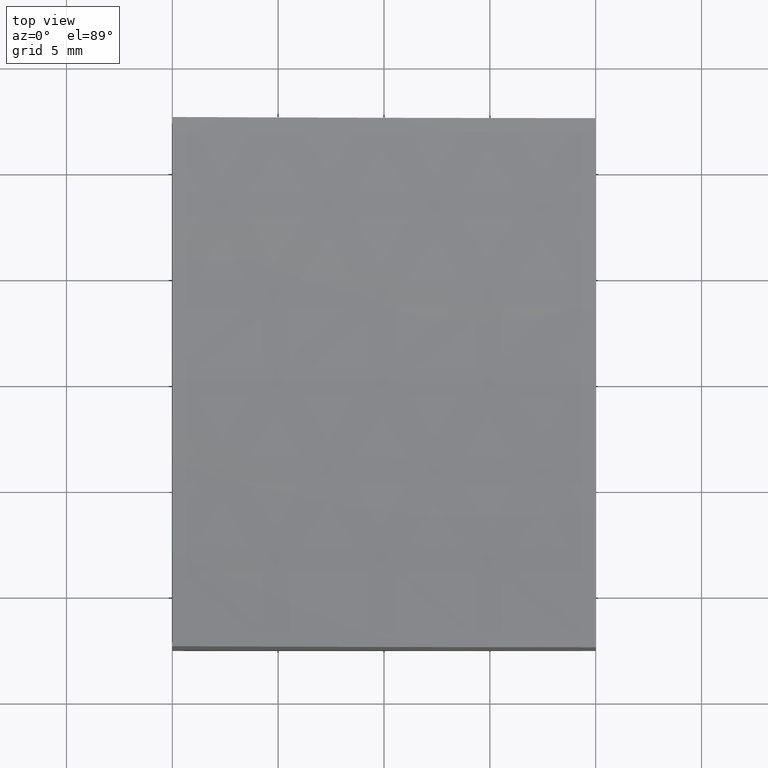
[diagram: clean part render]
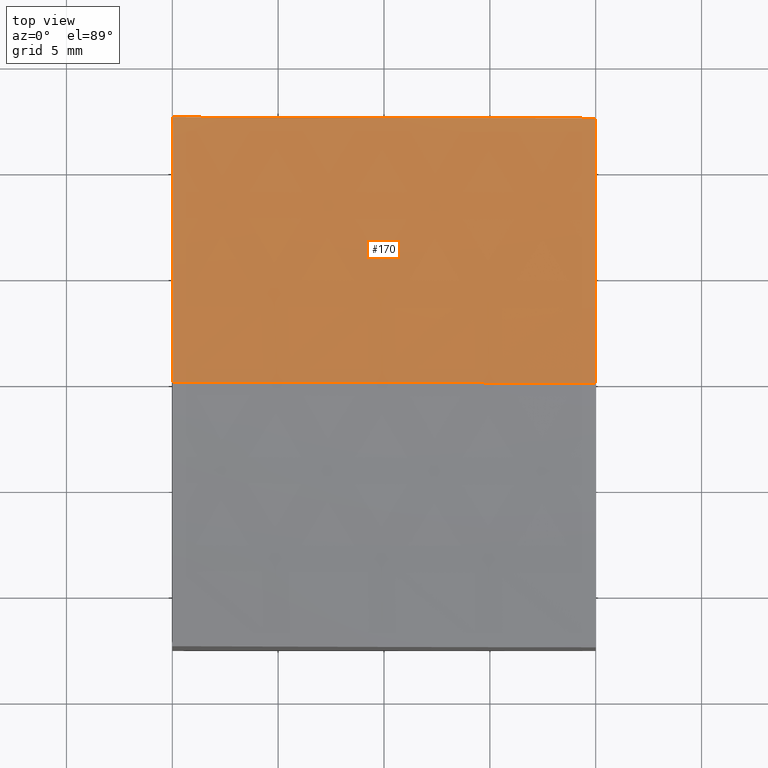
[diagram: same view with one face highlighted and labeled with its STEP entity id]
A machine part, top view. The second image highlights one B-rep face of the part: STEP entity #170.
In plain terms, the highlighted spherical surface has radius 100 mm.
Its self-contained STEP definition (entity closure, byte-faithful):
#2 = EDGE_CURVE ( 'NONE', #212, #157, #226, .T. ) ;
#12 = AXIS2_PLACEMENT_3D ( 'NONE', #122, #200, #274 ) ;
#17 = CARTESIAN_POINT ( 'NONE',  ( 10.00000000000000178, 12.50000000000000000, -0.08960591303207310343 ) ) ;
#31 = ORIENTED_EDGE ( 'NONE', *, *, #216, .T. ) ;
#41 = CARTESIAN_POINT ( 'NONE',  ( 15.00000000000001421, 12.50000000000000178, 99.00000000000000000 ) ) ;
#56 = AXIS2_PLACEMENT_3D ( 'NONE', #101, #184, #273 ) ;
#57 = DIRECTION ( 'NONE',  ( 0.000000000000000000, -1.000000000000000000, -0.000000000000000000 ) ) ;
#77 = DIRECTION ( 'NONE',  ( 1.000000000000000000, 0.000000000000000000, -1.387778780781445676E-16 ) ) ;
#78 = ORIENTED_EDGE ( 'NONE', *, *, #2, .F. ) ;
#81 = DIRECTION ( 'NONE',  ( 0.000000000000000000, 0.000000000000000000, 1.000000000000000000 ) ) ;
#87 = CARTESIAN_POINT ( 'NONE',  ( 10.00000000000000178, -6.123233995736767268E-16, -0.8749217771908888164 ) ) ;
#89 = AXIS2_PLACEMENT_3D ( 'NONE', #137, #249, #81 ) ;
#100 = FACE_OUTER_BOUND ( 'NONE', #192, .T. ) ;
#101 = CARTESIAN_POINT ( 'NONE',  ( 15.00000000000001421, 0.000000000000000000, 99.00000000000000000 ) ) ;
#104 = AXIS2_PLACEMENT_3D ( 'NONE', #41, #182, #196 ) ;
#106 = EDGE_CURVE ( 'NONE', #157, #179, #224, .T. ) ;
#122 = CARTESIAN_POINT ( 'NONE',  ( -10.00000000000000000, 0.000000000000000000, 99.00000000000000000 ) ) ;
#125 = SPHERICAL_SURFACE ( 'NONE', #213, 100.0000000000000000 ) ;
#137 = CARTESIAN_POINT ( 'NONE',  ( 10.00000000000000178, 0.000000000000000000, 99.00000000000000000 ) ) ;
#142 = CARTESIAN_POINT ( 'NONE',  ( -9.999999999999998224, 12.49999999999999645, 2.985678151642384925 ) ) ;
#150 = CIRCLE ( 'NONE', #56, 100.0000000000000000 ) ;
#155 = ORIENTED_EDGE ( 'NONE', *, *, #206, .F. ) ;
#157 = VERTEX_POINT ( 'NONE', #142 ) ;
#170 = ADVANCED_FACE ( 'NONE', ( #100 ), #125, .F. ) ;
#179 = VERTEX_POINT ( 'NONE', #17 ) ;
#182 = DIRECTION ( 'NONE',  ( 1.734723475976807094E-16, -1.000000000000000000, 0.000000000000000000 ) ) ;
#184 = DIRECTION ( 'NONE',  ( 1.224646799147353207E-16, -1.000000000000000000, -1.487096486582537186E-32 ) ) ;
#192 = EDGE_LOOP ( 'NONE', ( #78, #31, #155, #194 ) ) ;
#194 = ORIENTED_EDGE ( 'NONE', *, *, #106, .F. ) ;
#196 = DIRECTION ( 'NONE',  ( 1.000000000000000000, 1.748436918438156363E-16, 0.000000000000000000 ) ) ;
#200 = DIRECTION ( 'NONE',  ( 1.000000000000000000, 0.000000000000000000, 0.000000000000000000 ) ) ;
#206 = EDGE_CURVE ( 'NONE', #179, #271, #267, .T. ) ;
#212 = VERTEX_POINT ( 'NONE', #244 ) ;
#213 = AXIS2_PLACEMENT_3D ( 'NONE', #270, #57, #77 ) ;
#216 = EDGE_CURVE ( 'NONE', #212, #271, #150, .T. ) ;
#224 = CIRCLE ( 'NONE', #104, 99.21567416492216296 ) ;
#226 = CIRCLE ( 'NONE', #12, 96.82458365518542109 ) ;
#244 = CARTESIAN_POINT ( 'NONE',  ( -9.999999999999998224, -3.061616997868383043E-15, 2.175416344814578906 ) ) ;
#249 = DIRECTION ( 'NONE',  ( -1.000000000000000000, 0.000000000000000000, 0.000000000000000000 ) ) ;
#267 = CIRCLE ( 'NONE', #89, 99.87492177719090591 ) ;
#270 = CARTESIAN_POINT ( 'NONE',  ( 15.00000000000001421, 0.000000000000000000, 99.00000000000000000 ) ) ;
#271 = VERTEX_POINT ( 'NONE', #87 ) ;
#273 = DIRECTION ( 'NONE',  ( 1.000000000000000000, 1.224646799147353207E-16, 0.000000000000000000 ) ) ;
#274 = DIRECTION ( 'NONE',  ( 0.000000000000000000, 0.000000000000000000, -1.000000000000000000 ) ) ;